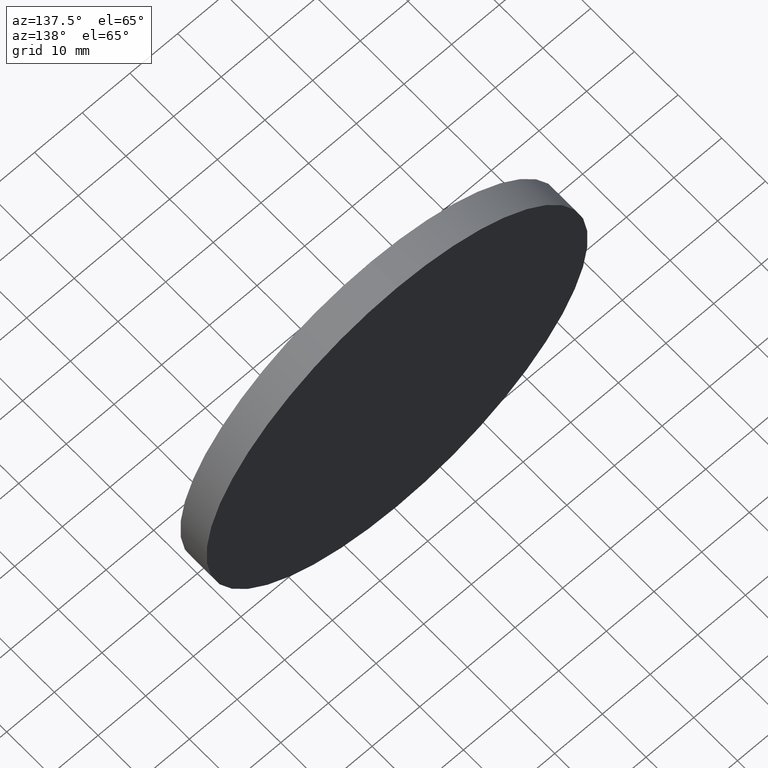
[diagram: clean part render]
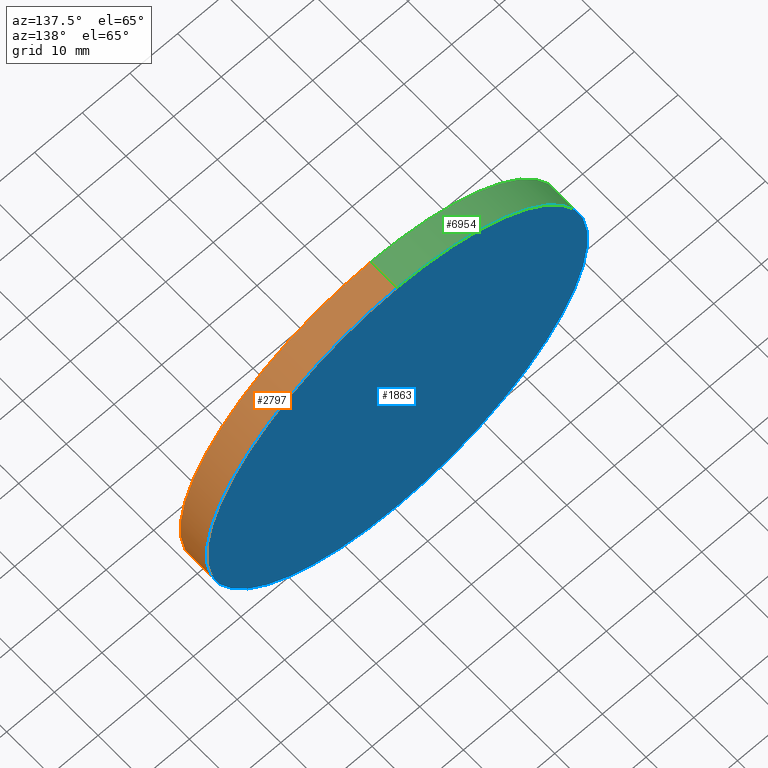
[diagram: same view with three faces highlighted in distinct colors, each labeled with its STEP entity id]
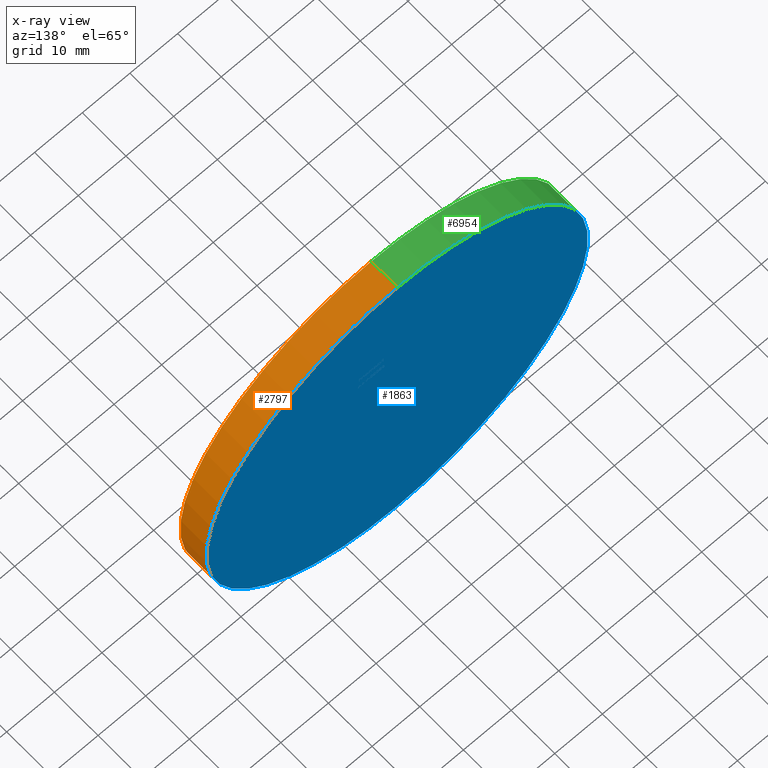
[diagram: x-ray of the same camera — body ghosted, the three highlighted faces saturated]
A machine part, auxiliary view with three faces highlighted in distinct colors.
The next image is the same camera in x-ray (body ghosted, the three faces saturated) — at least one of them is partly hidden behind the body in this view.
Their STEP definitions:

[orange] entity #2797 — the highlighted cylindrical surface (partial cylindrical patch) has radius 40 mm, axis along (-0, -1, -0).
#286 = CARTESIAN_POINT ( 'NONE',  ( 4.898587196589413026E-15, -3.000000000000000000, 40.00000000000000000 ) ) ;
#431 = CARTESIAN_POINT ( 'NONE',  ( 4.898587196589413026E-15, 3.000000000000000000, 40.00000000000000000 ) ) ;
#450 = VERTEX_POINT ( 'NONE', #9678 ) ;
#859 = EDGE_CURVE ( 'NONE', #450, #12381, #12845, .T. ) ;
#1609 = ORIENTED_EDGE ( 'NONE', *, *, #1848, .T. ) ;
#1848 = EDGE_CURVE ( 'NONE', #12381, #10648, #9066, .T. ) ;
#2712 = CYLINDRICAL_SURFACE ( 'NONE', #9096, 40.00000000000000000 ) ;
#2797 = ADVANCED_FACE ( 'NONE', ( #2876 ), #2712, .T. ) ;
#2876 = FACE_OUTER_BOUND ( 'NONE', #7532, .T. ) ;
#3370 = EDGE_CURVE ( 'NONE', #450, #4945, #8092, .T. ) ;
#3540 = ORIENTED_EDGE ( 'NONE', *, *, #12925, .F. ) ;
#3592 = AXIS2_PLACEMENT_3D ( 'NONE', #12015, #8155, #13034 ) ;
#4945 = VERTEX_POINT ( 'NONE', #6962 ) ;
#5567 = LINE ( 'NONE', #7005, #12652 ) ;
#5907 = VECTOR ( 'NONE', #9483, 1000.000000000000000 ) ;
#6962 = CARTESIAN_POINT ( 'NONE',  ( 0.000000000000000000, 3.000000000000000000, -40.00000000000000000 ) ) ;
#7005 = CARTESIAN_POINT ( 'NONE',  ( 0.000000000000000000, 3.000000000000000000, -40.00000000000000000 ) ) ;
#7023 = DIRECTION ( 'NONE',  ( 0.000000000000000000, 0.000000000000000000, 1.000000000000000000 ) ) ;
#7066 = DIRECTION ( 'NONE',  ( -0.000000000000000000, -1.000000000000000000, -0.000000000000000000 ) ) ;
#7193 = DIRECTION ( 'NONE',  ( 0.000000000000000000, 1.000000000000000000, 0.000000000000000000 ) ) ;
#7532 = EDGE_LOOP ( 'NONE', ( #10013, #11190, #1609, #3540 ) ) ;
#8092 = CIRCLE ( 'NONE', #3592, 40.00000000000000000 ) ;
#8155 = DIRECTION ( 'NONE',  ( 0.000000000000000000, 1.000000000000000000, 0.000000000000000000 ) ) ;
#9066 = CIRCLE ( 'NONE', #11785, 40.00000000000000000 ) ;
#9096 = AXIS2_PLACEMENT_3D ( 'NONE', #13052, #7066, #9107 ) ;
#9107 = DIRECTION ( 'NONE',  ( 0.000000000000000000, 0.000000000000000000, -1.000000000000000000 ) ) ;
#9483 = DIRECTION ( 'NONE',  ( -0.000000000000000000, -1.000000000000000000, -0.000000000000000000 ) ) ;
#9678 = CARTESIAN_POINT ( 'NONE',  ( 4.898587196589413026E-15, 3.000000000000000000, 40.00000000000000000 ) ) ;
#10013 = ORIENTED_EDGE ( 'NONE', *, *, #3370, .F. ) ;
#10035 = CARTESIAN_POINT ( 'NONE',  ( 0.000000000000000000, -3.000000000000000000, -40.00000000000000000 ) ) ;
#10131 = DIRECTION ( 'NONE',  ( -0.000000000000000000, -1.000000000000000000, -0.000000000000000000 ) ) ;
#10648 = VERTEX_POINT ( 'NONE', #10035 ) ;
#11190 = ORIENTED_EDGE ( 'NONE', *, *, #859, .T. ) ;
#11785 = AXIS2_PLACEMENT_3D ( 'NONE', #12173, #7193, #7023 ) ;
#12015 = CARTESIAN_POINT ( 'NONE',  ( 0.000000000000000000, 3.000000000000000000, 0.000000000000000000 ) ) ;
#12173 = CARTESIAN_POINT ( 'NONE',  ( 0.000000000000000000, -3.000000000000000000, 0.000000000000000000 ) ) ;
#12381 = VERTEX_POINT ( 'NONE', #286 ) ;
#12652 = VECTOR ( 'NONE', #10131, 1000.000000000000000 ) ;
#12845 = LINE ( 'NONE', #431, #5907 ) ;
#12925 = EDGE_CURVE ( 'NONE', #4945, #10648, #5567, .T. ) ;
#13034 = DIRECTION ( 'NONE',  ( 0.000000000000000000, 0.000000000000000000, 1.000000000000000000 ) ) ;
#13052 = CARTESIAN_POINT ( 'NONE',  ( 0.000000000000000000, 3.000000000000000000, 0.000000000000000000 ) ) ;

[blue] entity #1863 — the highlighted planar face has unit normal (0, 1, 0).
#450 = VERTEX_POINT ( 'NONE', #9678 ) ;
#646 = DIRECTION ( 'NONE',  ( 0.000000000000000000, 0.000000000000000000, 1.000000000000000000 ) ) ;
#689 = CARTESIAN_POINT ( 'NONE',  ( 0.000000000000000000, 3.000000000000000000, 0.000000000000000000 ) ) ;
#875 = EDGE_CURVE ( 'NONE', #4945, #450, #2747, .T. ) ;
#953 = EDGE_LOOP ( 'NONE', ( #7110, #8502 ) ) ;
#1580 = AXIS2_PLACEMENT_3D ( 'NONE', #4331, #4371, #3245 ) ;
#1863 = ADVANCED_FACE ( 'NONE', ( #3511 ), #9259, .T. ) ;
#2747 = CIRCLE ( 'NONE', #3755, 40.00000000000000000 ) ;
#3245 = DIRECTION ( 'NONE',  ( 0.000000000000000000, -0.000000000000000000, 1.000000000000000000 ) ) ;
#3370 = EDGE_CURVE ( 'NONE', #450, #4945, #8092, .T. ) ;
#3511 = FACE_OUTER_BOUND ( 'NONE', #953, .T. ) ;
#3592 = AXIS2_PLACEMENT_3D ( 'NONE', #12015, #8155, #13034 ) ;
#3755 = AXIS2_PLACEMENT_3D ( 'NONE', #689, #4768, #646 ) ;
#4331 = CARTESIAN_POINT ( 'NONE',  ( 0.000000000000000000, 3.000000000000000000, 0.000000000000000000 ) ) ;
#4371 = DIRECTION ( 'NONE',  ( 0.000000000000000000, 1.000000000000000000, 0.000000000000000000 ) ) ;
#4768 = DIRECTION ( 'NONE',  ( 0.000000000000000000, 1.000000000000000000, 0.000000000000000000 ) ) ;
#4945 = VERTEX_POINT ( 'NONE', #6962 ) ;
#6962 = CARTESIAN_POINT ( 'NONE',  ( 0.000000000000000000, 3.000000000000000000, -40.00000000000000000 ) ) ;
#7110 = ORIENTED_EDGE ( 'NONE', *, *, #875, .T. ) ;
#8092 = CIRCLE ( 'NONE', #3592, 40.00000000000000000 ) ;
#8155 = DIRECTION ( 'NONE',  ( 0.000000000000000000, 1.000000000000000000, 0.000000000000000000 ) ) ;
#8502 = ORIENTED_EDGE ( 'NONE', *, *, #3370, .T. ) ;
#9259 = PLANE ( 'NONE',  #1580 ) ;
#9678 = CARTESIAN_POINT ( 'NONE',  ( 4.898587196589413026E-15, 3.000000000000000000, 40.00000000000000000 ) ) ;
#12015 = CARTESIAN_POINT ( 'NONE',  ( 0.000000000000000000, 3.000000000000000000, 0.000000000000000000 ) ) ;
#13034 = DIRECTION ( 'NONE',  ( 0.000000000000000000, 0.000000000000000000, 1.000000000000000000 ) ) ;

[green] entity #6954 — the highlighted cylindrical surface (partial cylindrical patch) has radius 40 mm, axis along (-0, -1, -0).
#286 = CARTESIAN_POINT ( 'NONE',  ( 4.898587196589413026E-15, -3.000000000000000000, 40.00000000000000000 ) ) ;
#431 = CARTESIAN_POINT ( 'NONE',  ( 4.898587196589413026E-15, 3.000000000000000000, 40.00000000000000000 ) ) ;
#450 = VERTEX_POINT ( 'NONE', #9678 ) ;
#646 = DIRECTION ( 'NONE',  ( 0.000000000000000000, 0.000000000000000000, 1.000000000000000000 ) ) ;
#689 = CARTESIAN_POINT ( 'NONE',  ( 0.000000000000000000, 3.000000000000000000, 0.000000000000000000 ) ) ;
#859 = EDGE_CURVE ( 'NONE', #450, #12381, #12845, .T. ) ;
#875 = EDGE_CURVE ( 'NONE', #4945, #450, #2747, .T. ) ;
#1424 = EDGE_CURVE ( 'NONE', #10648, #12381, #6689, .T. ) ;
#2341 = EDGE_LOOP ( 'NONE', ( #2705, #7243, #7520, #10700 ) ) ;
#2363 = DIRECTION ( 'NONE',  ( 0.000000000000000000, 0.000000000000000000, 1.000000000000000000 ) ) ;
#2414 = CARTESIAN_POINT ( 'NONE',  ( 0.000000000000000000, -3.000000000000000000, 0.000000000000000000 ) ) ;
#2705 = ORIENTED_EDGE ( 'NONE', *, *, #859, .F. ) ;
#2747 = CIRCLE ( 'NONE', #3755, 40.00000000000000000 ) ;
#2816 = AXIS2_PLACEMENT_3D ( 'NONE', #2414, #6505, #2363 ) ;
#2856 = CARTESIAN_POINT ( 'NONE',  ( 0.000000000000000000, 3.000000000000000000, 0.000000000000000000 ) ) ;
#3755 = AXIS2_PLACEMENT_3D ( 'NONE', #689, #4768, #646 ) ;
#4768 = DIRECTION ( 'NONE',  ( 0.000000000000000000, 1.000000000000000000, 0.000000000000000000 ) ) ;
#4945 = VERTEX_POINT ( 'NONE', #6962 ) ;
#5567 = LINE ( 'NONE', #7005, #12652 ) ;
#5818 = DIRECTION ( 'NONE',  ( -0.000000000000000000, -1.000000000000000000, -0.000000000000000000 ) ) ;
#5907 = VECTOR ( 'NONE', #9483, 1000.000000000000000 ) ;
#6505 = DIRECTION ( 'NONE',  ( 0.000000000000000000, 1.000000000000000000, 0.000000000000000000 ) ) ;
#6689 = CIRCLE ( 'NONE', #2816, 40.00000000000000000 ) ;
#6821 = AXIS2_PLACEMENT_3D ( 'NONE', #2856, #5818, #12872 ) ;
#6954 = ADVANCED_FACE ( 'NONE', ( #8061 ), #12624, .T. ) ;
#6962 = CARTESIAN_POINT ( 'NONE',  ( 0.000000000000000000, 3.000000000000000000, -40.00000000000000000 ) ) ;
#7005 = CARTESIAN_POINT ( 'NONE',  ( 0.000000000000000000, 3.000000000000000000, -40.00000000000000000 ) ) ;
#7243 = ORIENTED_EDGE ( 'NONE', *, *, #875, .F. ) ;
#7520 = ORIENTED_EDGE ( 'NONE', *, *, #12925, .T. ) ;
#8061 = FACE_OUTER_BOUND ( 'NONE', #2341, .T. ) ;
#9483 = DIRECTION ( 'NONE',  ( -0.000000000000000000, -1.000000000000000000, -0.000000000000000000 ) ) ;
#9678 = CARTESIAN_POINT ( 'NONE',  ( 4.898587196589413026E-15, 3.000000000000000000, 40.00000000000000000 ) ) ;
#10035 = CARTESIAN_POINT ( 'NONE',  ( 0.000000000000000000, -3.000000000000000000, -40.00000000000000000 ) ) ;
#10131 = DIRECTION ( 'NONE',  ( -0.000000000000000000, -1.000000000000000000, -0.000000000000000000 ) ) ;
#10648 = VERTEX_POINT ( 'NONE', #10035 ) ;
#10700 = ORIENTED_EDGE ( 'NONE', *, *, #1424, .T. ) ;
#12381 = VERTEX_POINT ( 'NONE', #286 ) ;
#12624 = CYLINDRICAL_SURFACE ( 'NONE', #6821, 40.00000000000000000 ) ;
#12652 = VECTOR ( 'NONE', #10131, 1000.000000000000000 ) ;
#12845 = LINE ( 'NONE', #431, #5907 ) ;
#12872 = DIRECTION ( 'NONE',  ( 0.000000000000000000, 0.000000000000000000, -1.000000000000000000 ) ) ;
#12925 = EDGE_CURVE ( 'NONE', #4945, #10648, #5567, .T. ) ;